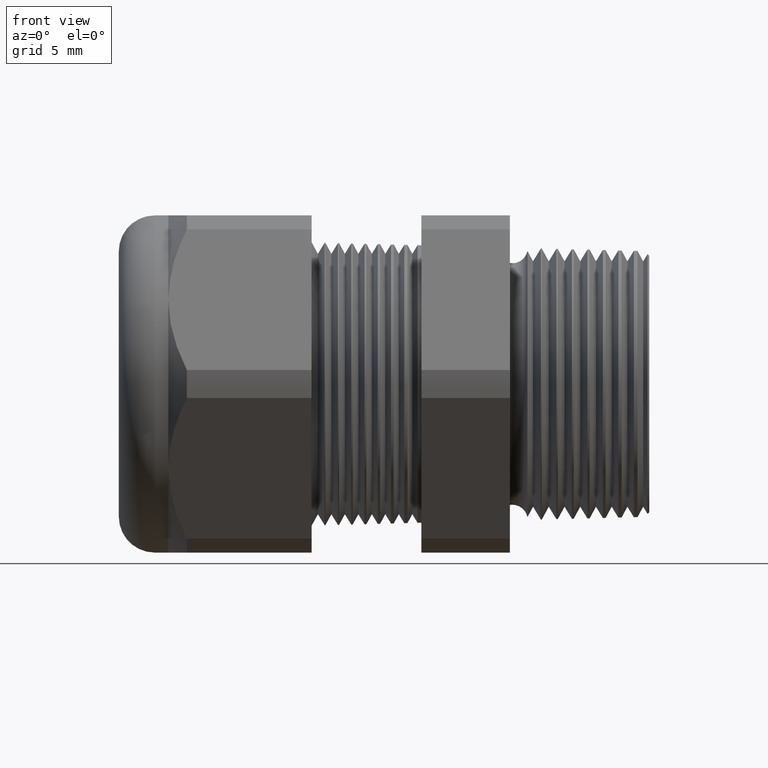
[diagram: clean part render]
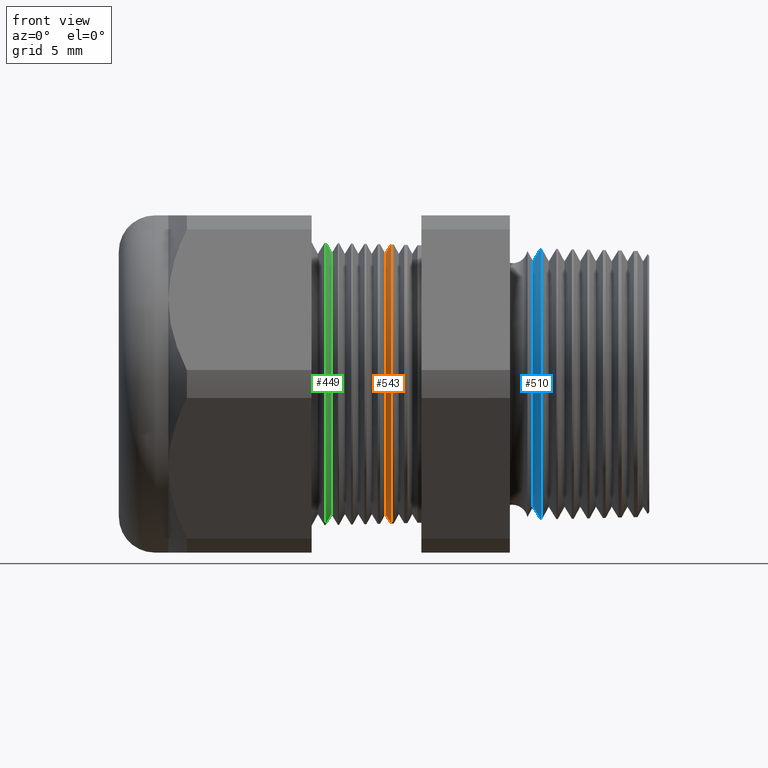
[diagram: same view with three faces highlighted in distinct colors, each labeled with its STEP entity id]
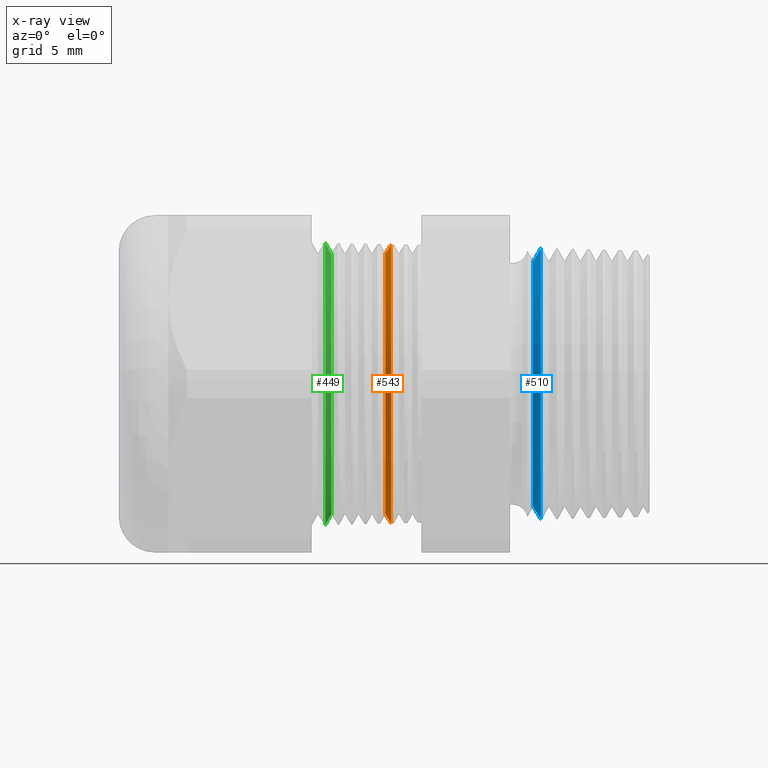
[diagram: x-ray of the same camera — body ghosted, the three highlighted faces saturated]
A machine part, front view with three faces highlighted in distinct colors.
The next image is the same camera in x-ray (body ghosted, the three faces saturated) — at least one of them is partly hidden behind the body in this view.
Their STEP definitions:

[orange] entity #543 — the highlighted conical surface has half-angle 58.5 deg.
#90 = EDGE_CURVE ( 'NONE', #867, #864, #1544, .T. ) ;
#468 = EDGE_LOOP ( 'NONE', ( #469, #470, #471, #472 ) ) ;
#469 = ORIENTED_EDGE ( 'NONE', *, *, #863, .F. ) ;
#470 = ORIENTED_EDGE ( 'NONE', *, *, #540, .T. ) ;
#471 = ORIENTED_EDGE ( 'NONE', *, *, #869, .T. ) ;
#472 = ORIENTED_EDGE ( 'NONE', *, *, #90, .T. ) ;
#540 = EDGE_CURVE ( 'NONE', #861, #860, #2243, .T. ) ;
#543 = ADVANCED_FACE ( 'NONE', ( #2239 ), #2304, .T. ) ;
#860 = VERTEX_POINT ( 'NONE', #2786 ) ;
#861 = VERTEX_POINT ( 'NONE', #2785 ) ;
#863 = EDGE_CURVE ( 'NONE', #861, #864, #2784, .T. ) ;
#864 = VERTEX_POINT ( 'NONE', #2845 ) ;
#867 = VERTEX_POINT ( 'NONE', #2839 ) ;
#869 = EDGE_CURVE ( 'NONE', #860, #867, #2838, .T. ) ;
#1542 = CARTESIAN_POINT ( 'NONE',  ( -0.5743775187239775800, 0.0000000000000000000, 0.0000000000000000000 ) ) ;
#1543 = AXIS2_PLACEMENT_3D ( 'NONE', #1542, #1603, #1602 ) ;
#1544 = CIRCLE ( 'NONE', #1543, 0.3103784827600519200 ) ;
#1602 = DIRECTION ( 'NONE',  ( 0.0000000000000000000, 0.0000000000000000000, -1.000000000000000000 ) ) ;
#1603 = DIRECTION ( 'NONE',  ( -1.000000000000000000, 0.0000000000000000000, 0.0000000000000000000 ) ) ;
#2239 = FACE_OUTER_BOUND ( 'NONE', #468, .T. ) ;
#2240 = DIRECTION ( 'NONE',  ( 0.0000000000000000000, 0.0000000000000000000, -1.000000000000000000 ) ) ;
#2241 = DIRECTION ( 'NONE',  ( 1.000000000000000000, 0.0000000000000000000, 0.0000000000000000000 ) ) ;
#2242 = AXIS2_PLACEMENT_3D ( 'NONE', #2248, #2241, #2240 ) ;
#2243 = CIRCLE ( 'NONE', #2242, 0.2896307351718083200 ) ;
#2248 = CARTESIAN_POINT ( 'NONE',  ( -0.5870917547981794300, 0.0000000000000000000, 0.0000000000000000000 ) ) ;
#2300 = DIRECTION ( 'NONE',  ( 0.0000000000000000000, 0.0000000000000000000, -1.000000000000000000 ) ) ;
#2301 = DIRECTION ( 'NONE',  ( 1.000000000000000000, 0.0000000000000000000, 0.0000000000000000000 ) ) ;
#2302 = CARTESIAN_POINT ( 'NONE',  ( -0.5870917547981794300, 0.0000000000000000000, 0.0000000000000000000 ) ) ;
#2303 = AXIS2_PLACEMENT_3D ( 'NONE', #2302, #2301, #2300 ) ;
#2304 = CONICAL_SURFACE ( 'NONE', #2303, 0.2896307351718083200, 1.021017612416705000 ) ;
#2782 = VECTOR ( 'NONE', #2846, 39.37007874015748100 ) ;
#2783 = CARTESIAN_POINT ( 'NONE',  ( -0.5870917547981794300, 3.546953527628497700E-017, 0.2896307351718083200 ) ) ;
#2784 = LINE ( 'NONE', #2783, #2782 ) ;
#2785 = CARTESIAN_POINT ( 'NONE',  ( -0.5870917547981794300, 0.0000000000000000000, 0.2896307351718083200 ) ) ;
#2786 = CARTESIAN_POINT ( 'NONE',  ( -0.5870917547981794300, 3.677897204110165000E-017, -0.2896307351718083200 ) ) ;
#2835 = DIRECTION ( 'NONE',  ( 0.5224985647159299300, 0.0000000000000000000, -0.8526401643541037200 ) ) ;
#2836 = VECTOR ( 'NONE', #2835, 39.37007874015748100 ) ;
#2837 = CARTESIAN_POINT ( 'NONE',  ( -0.5870917547981794300, 0.0000000000000000000, -0.2896307351718083200 ) ) ;
#2838 = LINE ( 'NONE', #2837, #2836 ) ;
#2839 = CARTESIAN_POINT ( 'NONE',  ( -0.5743775187239775800, 3.801040154363095500E-017, -0.3103784827600519200 ) ) ;
#2845 = CARTESIAN_POINT ( 'NONE',  ( -0.5743775187239775800, 0.0000000000000000000, 0.3103784827600519200 ) ) ;
#2846 = DIRECTION ( 'NONE',  ( 0.5224985647159299300, 1.044183048100726400E-016, 0.8526401643541037200 ) ) ;

[blue] entity #510 — the highlighted conical surface has half-angle 58.5 deg.
#100 = EDGE_CURVE ( 'NONE', #747, #742, #1591, .T. ) ;
#507 = EDGE_CURVE ( 'NONE', #756, #760, #2220, .T. ) ;
#510 = ADVANCED_FACE ( 'NONE', ( #2216 ), #2215, .T. ) ;
#511 = EDGE_LOOP ( 'NONE', ( #512, #513, #514, #566 ) ) ;
#512 = ORIENTED_EDGE ( 'NONE', *, *, #744, .F. ) ;
#513 = ORIENTED_EDGE ( 'NONE', *, *, #507, .T. ) ;
#514 = ORIENTED_EDGE ( 'NONE', *, *, #749, .T. ) ;
#566 = ORIENTED_EDGE ( 'NONE', *, *, #100, .T. ) ;
#742 = VERTEX_POINT ( 'NONE', #2581 ) ;
#744 = EDGE_CURVE ( 'NONE', #756, #742, #2580, .T. ) ;
#747 = VERTEX_POINT ( 'NONE', #2571 ) ;
#749 = EDGE_CURVE ( 'NONE', #760, #747, #2570, .T. ) ;
#756 = VERTEX_POINT ( 'NONE', #2613 ) ;
#760 = VERTEX_POINT ( 'NONE', #2608 ) ;
#1587 = DIRECTION ( 'NONE',  ( 0.0000000000000000000, 0.0000000000000000000, -1.000000000000000000 ) ) ;
#1588 = DIRECTION ( 'NONE',  ( -1.000000000000000000, 0.0000000000000000000, 0.0000000000000000000 ) ) ;
#1589 = CARTESIAN_POINT ( 'NONE',  ( -0.2409236207239159000, 0.0000000000000000000, 0.0000000000000000000 ) ) ;
#1590 = AXIS2_PLACEMENT_3D ( 'NONE', #1589, #1588, #1587 ) ;
#1591 = CIRCLE ( 'NONE', #1590, 0.3016466851400849700 ) ;
#2211 = DIRECTION ( 'NONE',  ( 0.0000000000000000000, 0.0000000000000000000, -1.000000000000000000 ) ) ;
#2212 = DIRECTION ( 'NONE',  ( 1.000000000000000000, 0.0000000000000000000, 0.0000000000000000000 ) ) ;
#2213 = CARTESIAN_POINT ( 'NONE',  ( -0.2584707356790751900, 0.0000000000000000000, 0.0000000000000000000 ) ) ;
#2214 = AXIS2_PLACEMENT_3D ( 'NONE', #2213, #2212, #2211 ) ;
#2215 = CONICAL_SURFACE ( 'NONE', #2214, 0.2730123959962614800, 1.021017612416701200 ) ;
#2216 = FACE_OUTER_BOUND ( 'NONE', #511, .T. ) ;
#2217 = DIRECTION ( 'NONE',  ( 0.0000000000000000000, 0.0000000000000000000, -1.000000000000000000 ) ) ;
#2218 = DIRECTION ( 'NONE',  ( 1.000000000000000000, 0.0000000000000000000, 0.0000000000000000000 ) ) ;
#2219 = AXIS2_PLACEMENT_3D ( 'NONE', #2225, #2218, #2217 ) ;
#2220 = CIRCLE ( 'NONE', #2219, 0.2730123959962614800 ) ;
#2225 = CARTESIAN_POINT ( 'NONE',  ( -0.2584707356790751900, 0.0000000000000000000, 0.0000000000000000000 ) ) ;
#2567 = DIRECTION ( 'NONE',  ( 0.5224985647159332600, 0.0000000000000000000, -0.8526401643541019500 ) ) ;
#2568 = VECTOR ( 'NONE', #2567, 39.37007874015747400 ) ;
#2569 = CARTESIAN_POINT ( 'NONE',  ( -0.2584707356790751900, 0.0000000000000000000, -0.2730123959962614800 ) ) ;
#2570 = LINE ( 'NONE', #2569, #2568 ) ;
#2571 = CARTESIAN_POINT ( 'NONE',  ( -0.2409236207239159000, 3.694106474302146200E-017, -0.3016466851400850200 ) ) ;
#2577 = DIRECTION ( 'NONE',  ( 0.5224985647159332600, 1.044183048100724200E-016, 0.8526401643541019500 ) ) ;
#2578 = VECTOR ( 'NONE', #2577, 39.37007874015747400 ) ;
#2579 = CARTESIAN_POINT ( 'NONE',  ( -0.2584707356790751900, 3.343437568843712800E-017, 0.2730123959962614800 ) ) ;
#2580 = LINE ( 'NONE', #2579, #2578 ) ;
#2581 = CARTESIAN_POINT ( 'NONE',  ( -0.2409236207239159000, 0.0000000000000000000, 0.3016466851400850200 ) ) ;
#2608 = CARTESIAN_POINT ( 'NONE',  ( -0.2584707356790751900, 3.483004186774505800E-017, -0.2730123959962614800 ) ) ;
#2613 = CARTESIAN_POINT ( 'NONE',  ( -0.2584707356790751900, 0.0000000000000000000, 0.2730123959962614800 ) ) ;

[green] entity #449 — the highlighted conical surface has half-angle 61.5 deg.
#130 = EDGE_CURVE ( 'NONE', #1018, #1015, #1655, .T. ) ;
#449 = ADVANCED_FACE ( 'NONE', ( #2166 ), #2165, .T. ) ;
#450 = EDGE_LOOP ( 'NONE', ( #451, #452, #454, #455 ) ) ;
#451 = ORIENTED_EDGE ( 'NONE', *, *, #1014, .F. ) ;
#452 = ORIENTED_EDGE ( 'NONE', *, *, #453, .F. ) ;
#453 = EDGE_CURVE ( 'NONE', #988, #987, #2164, .T. ) ;
#454 = ORIENTED_EDGE ( 'NONE', *, *, #1020, .T. ) ;
#455 = ORIENTED_EDGE ( 'NONE', *, *, #130, .T. ) ;
#987 = VERTEX_POINT ( 'NONE', #3041 ) ;
#988 = VERTEX_POINT ( 'NONE', #3040 ) ;
#1014 = EDGE_CURVE ( 'NONE', #987, #1015, #3121, .T. ) ;
#1015 = VERTEX_POINT ( 'NONE', #3117 ) ;
#1018 = VERTEX_POINT ( 'NONE', #3111 ) ;
#1020 = EDGE_CURVE ( 'NONE', #988, #1018, #3110, .T. ) ;
#1647 = DIRECTION ( 'NONE',  ( 0.0000000000000000000, 0.0000000000000000000, 1.000000000000000000 ) ) ;
#1648 = DIRECTION ( 'NONE',  ( 1.000000000000000000, 0.0000000000000000000, 0.0000000000000000000 ) ) ;
#1649 = CARTESIAN_POINT ( 'NONE',  ( -0.7204334560345875300, 0.0000000000000000000, 0.0000000000000000000 ) ) ;
#1650 = AXIS2_PLACEMENT_3D ( 'NONE', #1649, #1648, #1647 ) ;
#1655 = CIRCLE ( 'NONE', #1650, 0.3142030920791806200 ) ;
#2156 = DIRECTION ( 'NONE',  ( 0.0000000000000000000, 0.0000000000000000000, -1.000000000000000000 ) ) ;
#2157 = DIRECTION ( 'NONE',  ( 1.000000000000000000, 0.0000000000000000000, 0.0000000000000000000 ) ) ;
#2158 = CARTESIAN_POINT ( 'NONE',  ( -0.7070917547981794300, 0.0000000000000000000, 0.0000000000000000000 ) ) ;
#2159 = AXIS2_PLACEMENT_3D ( 'NONE', #2158, #2157, #2156 ) ;
#2160 = DIRECTION ( 'NONE',  ( 0.0000000000000000000, 0.0000000000000000000, 1.000000000000000000 ) ) ;
#2161 = DIRECTION ( 'NONE',  ( -1.000000000000000000, 0.0000000000000000000, 0.0000000000000000000 ) ) ;
#2162 = CARTESIAN_POINT ( 'NONE',  ( -0.7208661417322834700, 0.0000000000000000000, 0.0000000000000000000 ) ) ;
#2163 = AXIS2_PLACEMENT_3D ( 'NONE', #2162, #2161, #2160 ) ;
#2164 = CIRCLE ( 'NONE', #2159, 0.2896307351718083200 ) ;
#2165 = CONICAL_SURFACE ( 'NONE', #2163, 0.3150000000000000000, 1.073377489976500100 ) ;
#2166 = FACE_OUTER_BOUND ( 'NONE', #450, .T. ) ;
#3040 = CARTESIAN_POINT ( 'NONE',  ( -0.7070917547981794300, 0.0000000000000000000, 0.2896307351718083200 ) ) ;
#3041 = CARTESIAN_POINT ( 'NONE',  ( -0.7070917547981794300, 3.697415818799097200E-017, -0.2896307351718083200 ) ) ;
#3107 = DIRECTION ( 'NONE',  ( -0.4771587602596195100, 0.0000000000000000000, 0.8788171126619593900 ) ) ;
#3108 = VECTOR ( 'NONE', #3107, 39.37007874015748100 ) ;
#3109 = CARTESIAN_POINT ( 'NONE',  ( -0.7208661417322834700, 0.0000000000000000000, 0.3150000000000000000 ) ) ;
#3110 = LINE ( 'NONE', #3109, #3108 ) ;
#3111 = CARTESIAN_POINT ( 'NONE',  ( -0.7204334560345875300, 0.0000000000000000000, 0.3142030920791806200 ) ) ;
#3117 = CARTESIAN_POINT ( 'NONE',  ( -0.7204334560345875300, 3.848130659775144900E-017, -0.3142030920791806200 ) ) ;
#3118 = DIRECTION ( 'NONE',  ( -0.4771587602596195100, 1.076240564057387400E-016, -0.8788171126619593900 ) ) ;
#3119 = VECTOR ( 'NONE', #3118, 39.37007874015748100 ) ;
#3120 = CARTESIAN_POINT ( 'NONE',  ( -0.7208661417322834700, 3.857637417314162700E-017, -0.3150000000000000000 ) ) ;
#3121 = LINE ( 'NONE', #3120, #3119 ) ;